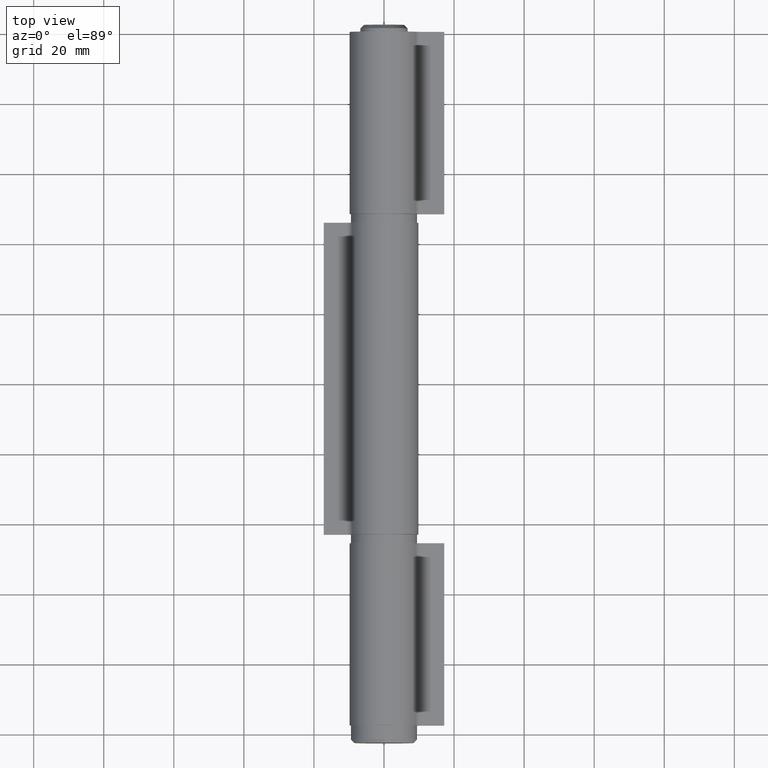
[diagram: clean part render]
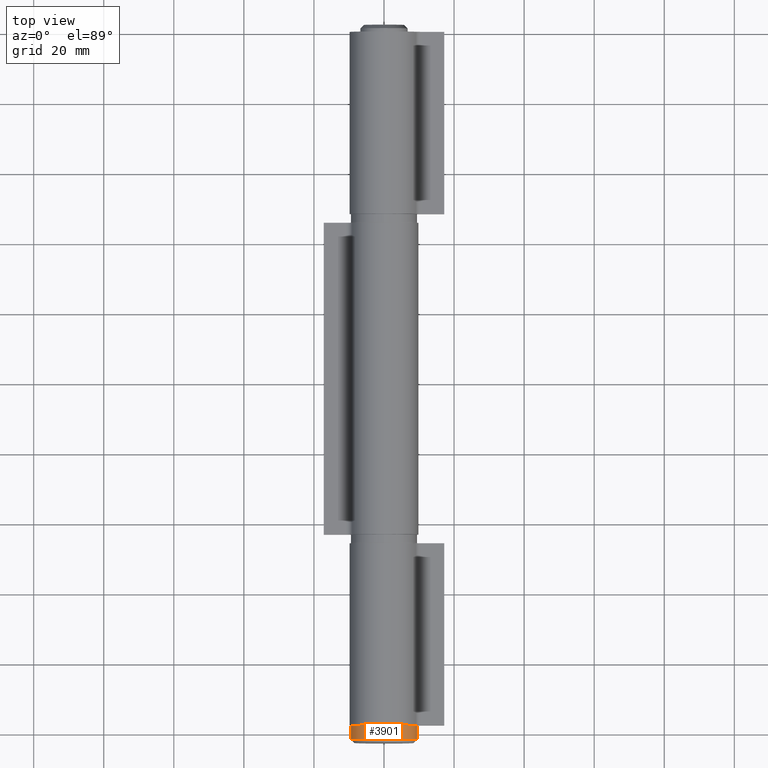
[diagram: same view with one face highlighted and labeled with its STEP entity id]
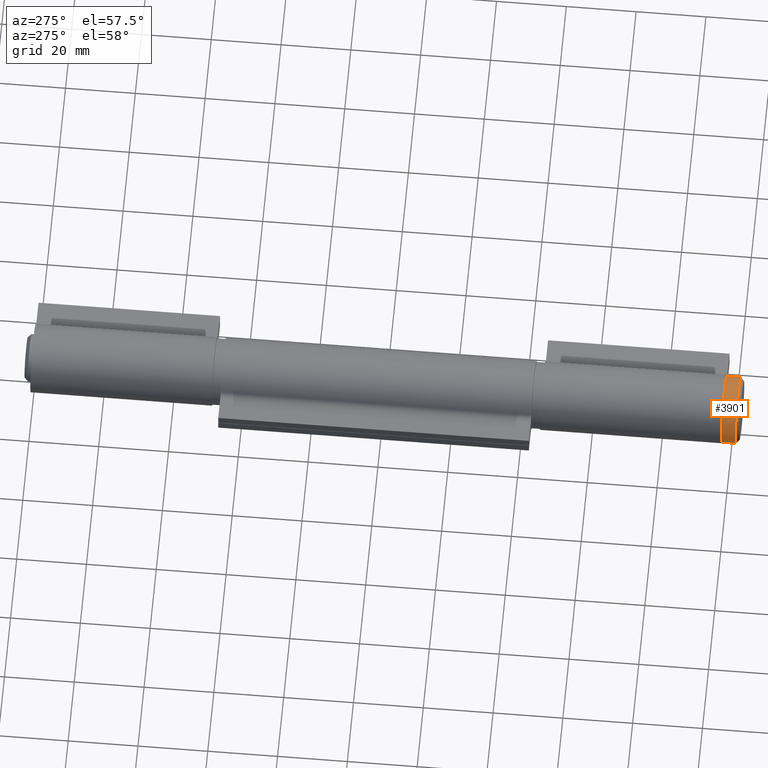
[diagram: same view with one face highlighted and labeled with its STEP entity id]
A machine part, top view. The second image highlights one B-rep face of the part: STEP entity #3901.
A second angle (auxiliary view) of the same face is appended — the face is thin or edge-on in the first view.
In plain terms, the highlighted cylindrical surface (bore or boss wall) has radius 9.5 mm, axis along (0, 1, 0).
Its self-contained STEP definition (entity closure, byte-faithful):
#752 = EDGE_LOOP ( 'NONE', ( #3273 ) ) ;
#1247 = AXIS2_PLACEMENT_3D ( 'NONE', #2944, #9920, #6885 ) ;
#1401 = AXIS2_PLACEMENT_3D ( 'NONE', #8780, #4021, #7791 ) ;
#1567 = AXIS2_PLACEMENT_3D ( 'NONE', #2399, #5769, #7731 ) ;
#2219 = EDGE_CURVE ( 'NONE', #7218, #7218, #9260, .T. ) ;
#2399 = CARTESIAN_POINT ( 'NONE',  ( 2.137008664512131175E-14, 102.5000000000000000, 0.000000000000000000 ) ) ;
#2944 = CARTESIAN_POINT ( 'NONE',  ( 2.137008664512131175E-14, -101.5000000000000000, 0.000000000000000000 ) ) ;
#3273 = ORIENTED_EDGE ( 'NONE', *, *, #2219, .F. ) ;
#3901 = ADVANCED_FACE ( 'NONE', ( #11501, #8613 ), #9997, .T. ) ;
#4021 = DIRECTION ( 'NONE',  ( -0.000000000000000000, 1.000000000000000000, -0.000000000000000000 ) ) ;
#4057 = VERTEX_POINT ( 'NONE', #6360 ) ;
#4283 = ORIENTED_EDGE ( 'NONE', *, *, #8349, .T. ) ;
#5769 = DIRECTION ( 'NONE',  ( -0.000000000000000000, 1.000000000000000000, -0.000000000000000000 ) ) ;
#6360 = CARTESIAN_POINT ( 'NONE',  ( 2.137008664512131175E-14, -101.5000000000000000, 9.500000000000001776 ) ) ;
#6885 = DIRECTION ( 'NONE',  ( 0.000000000000000000, 0.000000000000000000, 1.000000000000000000 ) ) ;
#7218 = VERTEX_POINT ( 'NONE', #10692 ) ;
#7731 = DIRECTION ( 'NONE',  ( 0.000000000000000000, 0.000000000000000000, 1.000000000000000000 ) ) ;
#7791 = DIRECTION ( 'NONE',  ( 0.000000000000000000, 0.000000000000000000, 1.000000000000000000 ) ) ;
#8349 = EDGE_CURVE ( 'NONE', #4057, #4057, #11422, .T. ) ;
#8613 = FACE_OUTER_BOUND ( 'NONE', #752, .T. ) ;
#8780 = CARTESIAN_POINT ( 'NONE',  ( 2.137008664512131175E-14, -97.49999999999998579, 0.000000000000000000 ) ) ;
#9260 = CIRCLE ( 'NONE', #1401, 9.500000000000003553 ) ;
#9920 = DIRECTION ( 'NONE',  ( -0.000000000000000000, 1.000000000000000000, -0.000000000000000000 ) ) ;
#9997 = CYLINDRICAL_SURFACE ( 'NONE', #1567, 9.500000000000001776 ) ;
#10405 = EDGE_LOOP ( 'NONE', ( #4283 ) ) ;
#10692 = CARTESIAN_POINT ( 'NONE',  ( 2.137008664512131175E-14, -97.49999999999998579, 9.500000000000003553 ) ) ;
#11422 = CIRCLE ( 'NONE', #1247, 9.500000000000001776 ) ;
#11501 = FACE_OUTER_BOUND ( 'NONE', #10405, .T. ) ;